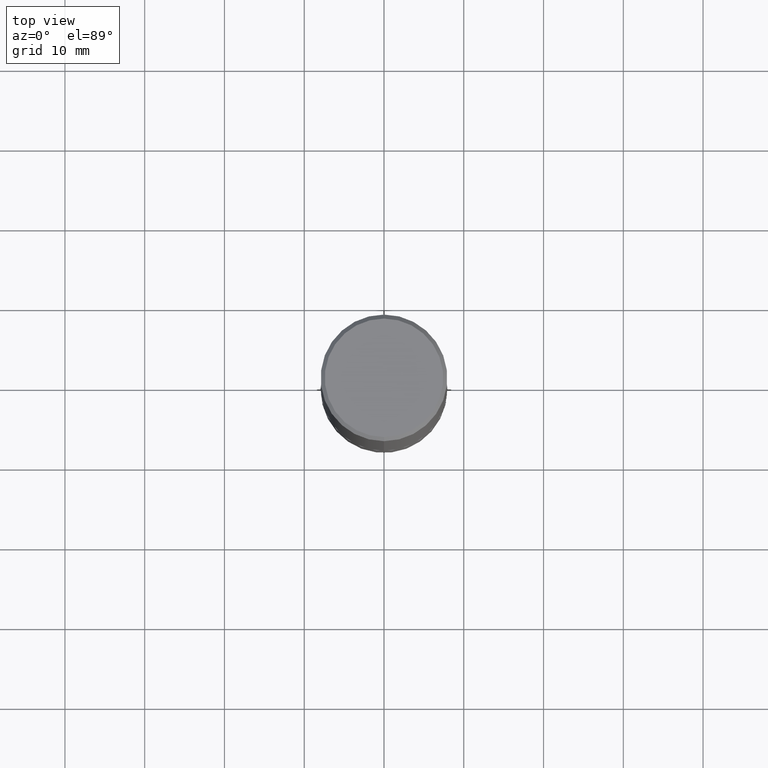
[diagram: clean part render]
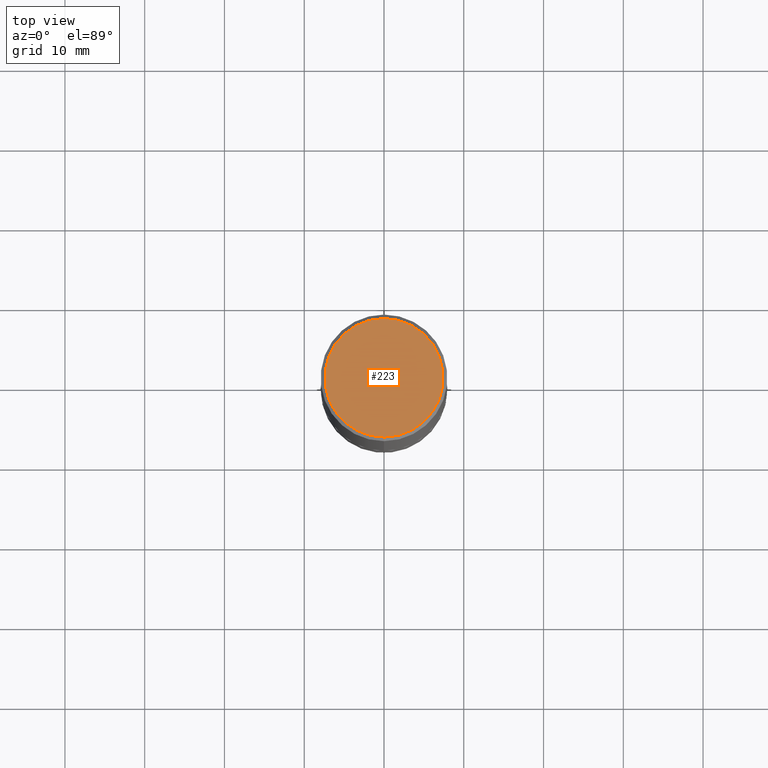
[diagram: same view with one face highlighted and labeled with its STEP entity id]
A machine part, top view. The second image highlights one B-rep face of the part: STEP entity #223.
In plain terms, the highlighted planar face has unit normal (0, -0, -1).
Its self-contained STEP definition (entity closure, byte-faithful):
#45 = CARTESIAN_POINT ( 'NONE',  ( -7.103116949044670066E-45, 1.014694764316955508E-30, 2.905401135611673704E-16 ) ) ;
#51 = EDGE_CURVE ( 'NONE', #126, #386, #263, .T. ) ;
#62 = DIRECTION ( 'NONE',  ( -6.982962677686266711E-15, -1.000000000000000000, 3.492442925969092620E-15 ) ) ;
#72 = AXIS2_PLACEMENT_3D ( 'NONE', #340, #241, #275 ) ;
#108 = DIRECTION ( 'NONE',  ( -2.444797333483953649E-29, 3.492442925969092226E-15, 1.000000000000000000 ) ) ;
#110 = AXIS2_PLACEMENT_3D ( 'NONE', #45, #234, #62 ) ;
#126 = VERTEX_POINT ( 'NONE', #135 ) ;
#135 = CARTESIAN_POINT ( 'NONE',  ( -2.075300644325885521E-15, -0.2924999999999994826, 1.312079669407125151E-15 ) ) ;
#145 = FACE_OUTER_BOUND ( 'NONE', #190, .T. ) ;
#156 = AXIS2_PLACEMENT_3D ( 'NONE', #372, #108, #203 ) ;
#162 = ORIENTED_EDGE ( 'NONE', *, *, #51, .T. ) ;
#173 = EDGE_CURVE ( 'NONE', #386, #126, #176, .T. ) ;
#176 = CIRCLE ( 'NONE', #156, 0.2924999999999994826 ) ;
#190 = EDGE_LOOP ( 'NONE', ( #348, #162 ) ) ;
#203 = DIRECTION ( 'NONE',  ( -6.982962677686266711E-15, -1.000000000000000000, 3.492442925969092620E-15 ) ) ;
#204 = PLANE ( 'NONE',  #72 ) ;
#223 = ADVANCED_FACE ( 'NONE', ( #145 ), #204, .F. ) ;
#234 = DIRECTION ( 'NONE',  ( -2.444797333483953649E-29, 3.492442925969092226E-15, 1.000000000000000000 ) ) ;
#241 = DIRECTION ( 'NONE',  ( 2.444797333483953089E-29, -3.492442925969092620E-15, -1.000000000000000000 ) ) ;
#263 = CIRCLE ( 'NONE', #110, 0.2924999999999994826 ) ;
#275 = DIRECTION ( 'NONE',  ( 6.982962677686265922E-15, 1.000000000000000000, -3.492442925969092620E-15 ) ) ;
#340 = CARTESIAN_POINT ( 'NONE',  ( 2.042516583223229384E-15, 0.2924999999999994826, -8.762694990653740957E-16 ) ) ;
#348 = ORIENTED_EDGE ( 'NONE', *, *, #173, .T. ) ;
#372 = CARTESIAN_POINT ( 'NONE',  ( -7.103116949044670066E-45, 1.014694764316955508E-30, 2.905401135611673704E-16 ) ) ;
#386 = VERTEX_POINT ( 'NONE', #412 ) ;
#412 = CARTESIAN_POINT ( 'NONE',  ( 2.112346210000093471E-15, 0.2924999999999994826, -7.309994422847904105E-16 ) ) ;